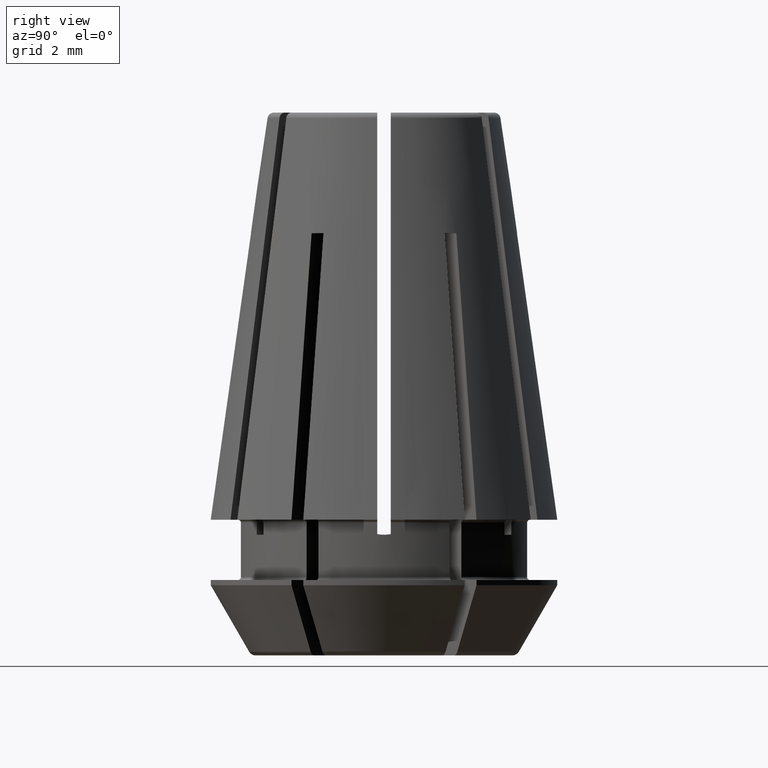
[diagram: clean part render]
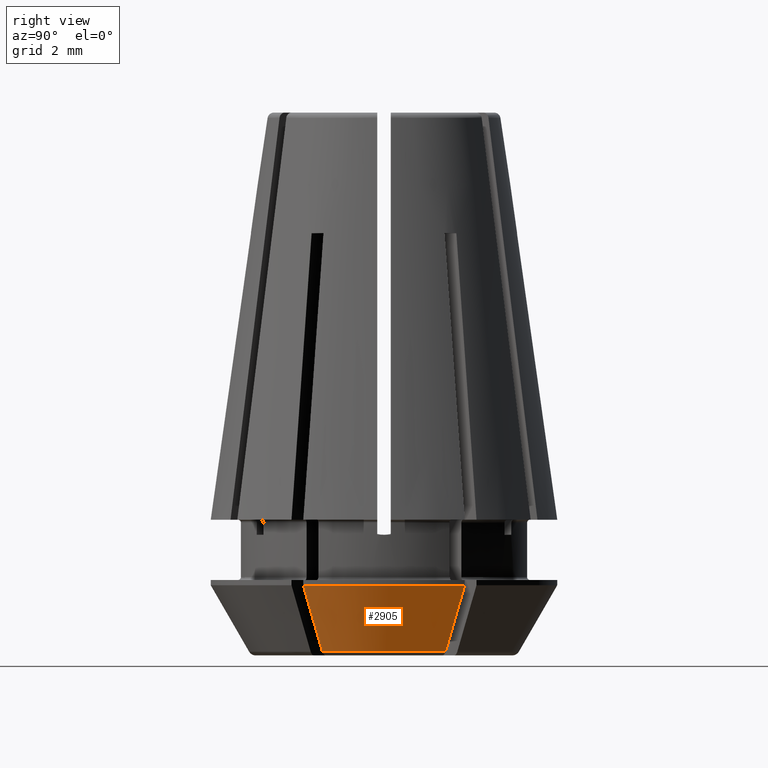
[diagram: same view with one face highlighted and labeled with its STEP entity id]
A machine part, right view. The second image highlights one B-rep face of the part: STEP entity #2905.
In plain terms, the highlighted conical surface has half-angle 30 deg.
Its self-contained STEP definition (entity closure, byte-faithful):
#62=CONICAL_SURFACE('',#3209,5.6232050807569,0.523598775598259);
#510=CIRCLE('',#3016,11643.0879269477);
#604=CIRCLE('',#3208,4.47879311067464);
#605=CIRCLE('',#3210,5.75);
#606=CIRCLE('',#3211,11643.0881429355);
#1219=ORIENTED_EDGE('',*,*,#1628,.F.);
#1220=ORIENTED_EDGE('',*,*,#1935,.F.);
#1221=ORIENTED_EDGE('',*,*,#1936,.T.);
#1222=ORIENTED_EDGE('',*,*,#1933,.T.);
#1628=EDGE_CURVE('',#2078,#2079,#510,.T.);
#1933=EDGE_CURVE('',#2275,#2079,#604,.T.);
#1935=EDGE_CURVE('',#2276,#2078,#605,.T.);
#1936=EDGE_CURVE('',#2276,#2275,#606,.T.);
#2078=VERTEX_POINT('',#4388);
#2079=VERTEX_POINT('',#4390);
#2275=VERTEX_POINT('',#5346);
#2276=VERTEX_POINT('',#5353);
#2547=EDGE_LOOP('',(#1219,#1220,#1221,#1222));
#2705=FACE_BOUND('',#2547,.T.);
#2905=ADVANCED_FACE('',(#2705),#62,.T.);
#3016=AXIS2_PLACEMENT_3D('',#4389,#3406,#3407);
#3208=AXIS2_PLACEMENT_3D('',#5345,#3915,#3916);
#3209=AXIS2_PLACEMENT_3D('',#5351,#3917,#3918);
#3210=AXIS2_PLACEMENT_3D('',#5352,#3919,#3920);
#3211=AXIS2_PLACEMENT_3D('',#5354,#3921,#3922);
#3406=DIRECTION('',(-0.499999999975861,0.866025403798375,-1.60116403997686E-11));
#3407=DIRECTION('',(0.749862725995003,0.432933446671364,-0.500274447595114));
#3915=DIRECTION('',(0.,0.,1.));
#3916=DIRECTION('',(1.,0.,0.));
#3917=DIRECTION('',(0.,0.,1.));
#3918=DIRECTION('',(1.,0.,0.));
#3919=DIRECTION('',(0.,0.,1.));
#3920=DIRECTION('',(1.,0.,0.));
#3921=DIRECTION('',(0.500000000017236,0.866025403774487,-1.14368860006067E-11));
#3922=DIRECTION('',(0.749862725966526,-0.432933446718546,-0.500274447596966));
#4388=CARTESIAN_POINT('',(5.08833221682564,2.6779423539752,-2.17320508075687));
#4389=CARTESIAN_POINT('',(-8725.62931968366,-5038.00424375722,5822.56617587432));
#4390=CARTESIAN_POINT('',(3.98635106143356,2.04171323726769,-4.375));
#5345=CARTESIAN_POINT('',(0.,0.,-4.375));
#5346=CARTESIAN_POINT('',(3.98635106143266,-2.04171323726811,-4.37500000000068));
#5351=CARTESIAN_POINT('',(0.,0.,-2.39282032302753));
#5352=CARTESIAN_POINT('',(0.,0.,-2.17320508075687));
#5353=CARTESIAN_POINT('',(5.08833221682564,-2.6779423539752,-2.17320508075687));
#5354=CARTESIAN_POINT('',(-8725.62948131334,5038.00433781493,5822.56628394909));